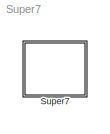
MODEL Super7
KIND model
CONFIG AbsTol = auto
CONFIG FixedStep = auto
CONFIG MaxStep = auto
CONFIG MinStep = auto
CONFIG RelTol = 1e-3
CONFIG Solver = ode45
CONFIG SolverMode = Auto
CONFIG StartTime = 0.0
CONFIG StopTime = 10.0
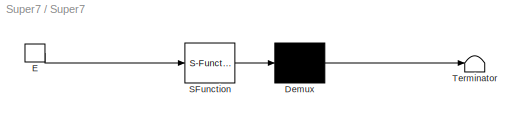
BLOCK [SubSystem] Super7
  MaskDescription = Stateflow diagram
  MaskDisplay = plot(sf('Private','sfblk','xIcon'),sf('Private','sfblk','yIcon'));text(0.5,0,sf('Private', 'sfblk', 'tIcon'),'HorizontalAl','Center','VerticalAl','Bottom');
  MaskIconFrame = off
  MaskIconOpaque = off
  MaskIconRotate = none
  MaskIconUnits = autoscale
  MaskSelfModifiable = on
  MaskType = Stateflow
  Ports = [0, 0, 0, 1]
  TreatAsAtomicUnit = off
BLOCK [Demux] Super7/ Demux 
  Outputs = 1
  Ports = [1, 1]
BLOCK [S-Function] Super7/ SFunction 
  FunctionName = sf_sfun
  PortCounts = [1 1]
  Ports = [1, 1]
  Tag = Stateflow S-Function Super7 1
BLOCK [Terminator] Super7/ Terminator 
BLOCK [TriggerPort] Super7/E
  Ports = [0, 1]
  ShowOutputPort = on
  TriggerType = either
LINE Super7/ Demux :1 -> Super7/ Terminator :1
LINE Super7/ SFunction :1 -> Super7/ Demux :1
LINE Super7/E:1 -> Super7/ SFunction :1
CHART Super7 states=4 transitions=4
  STATE_LABEL 'A'
  STATE_LABEL 'B'
  STATE_LABEL 'A1'
  STATE_LABEL 'A1a'
